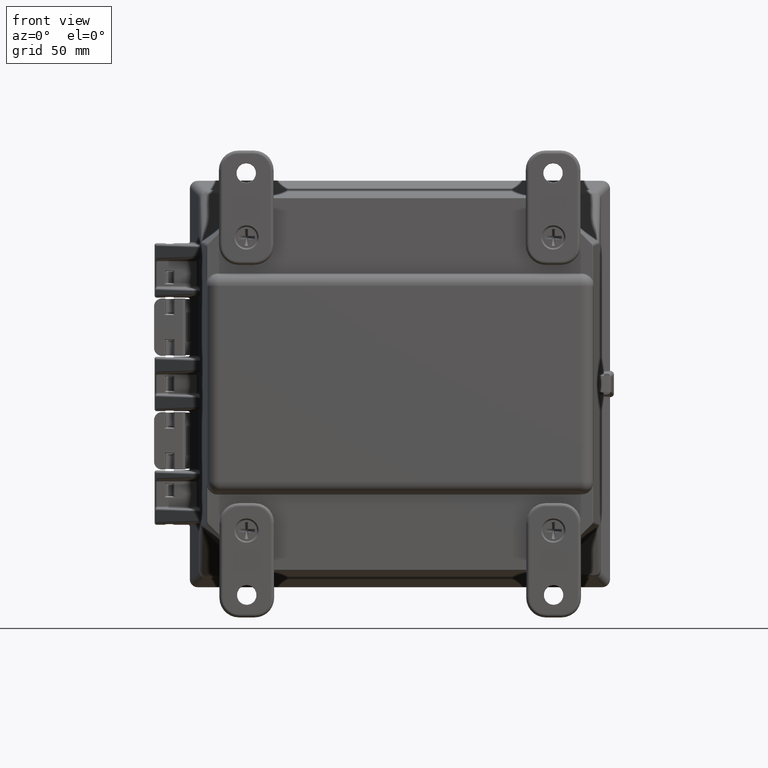
[diagram: clean part render]
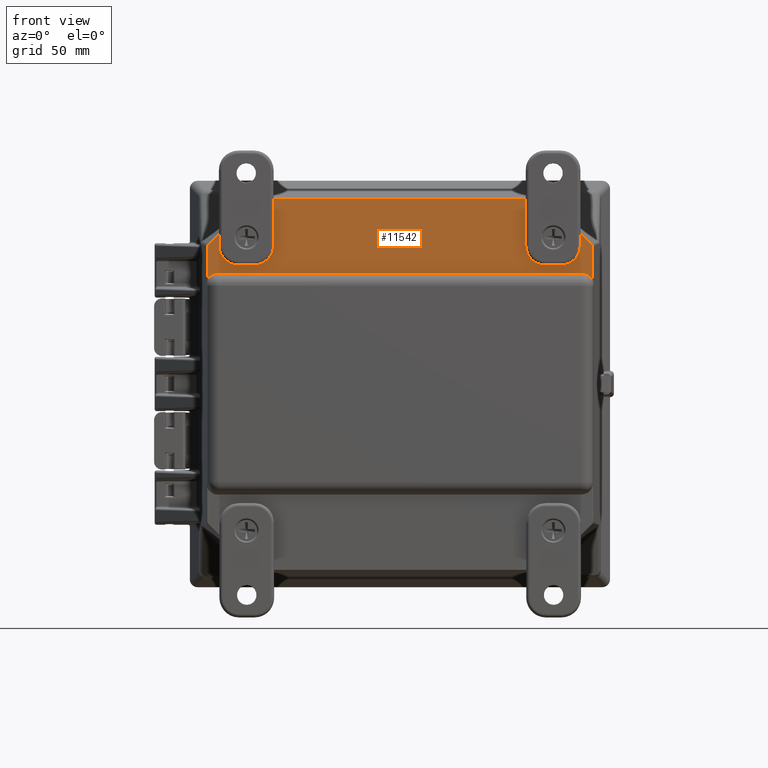
[diagram: same view with one face highlighted and labeled with its STEP entity id]
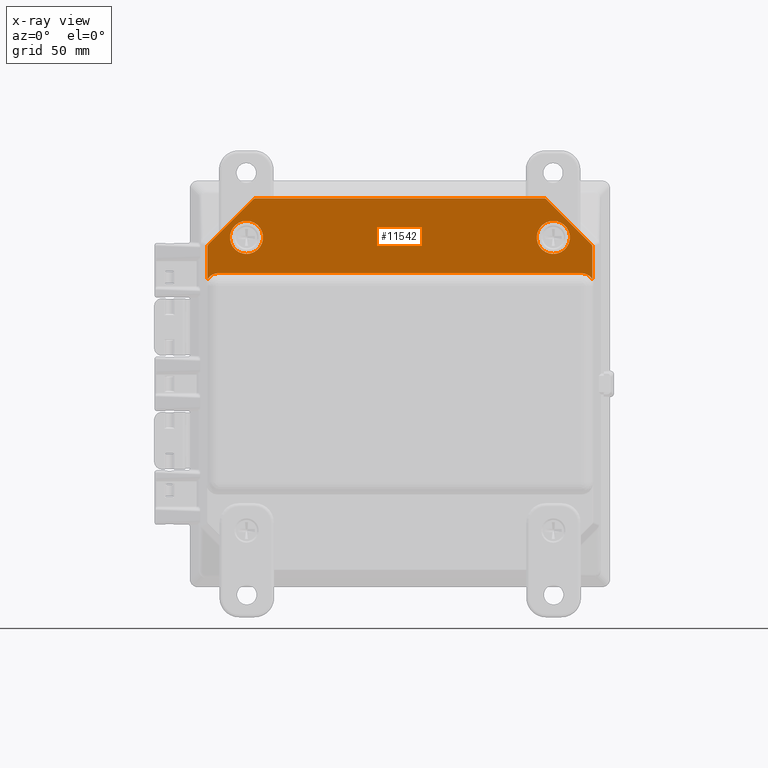
[diagram: x-ray of the same camera — body ghosted, the highlighted face saturated]
A machine part, front view. The second image highlights one B-rep face of the part: STEP entity #11542.
The next image is the same camera in x-ray: the body ghosted, the highlighted face saturated — about 0% of this face is hidden behind the body in this view.
In plain terms, the highlighted planar face has unit normal (0, 1, 0).
Its self-contained STEP definition (entity closure, byte-faithful):
#10 = DIRECTION ( 'NONE',  ( 0.0000000000000000000, 0.0000000000000000000, 1.000000000000000000 ) ) ;
#39 = CARTESIAN_POINT ( 'NONE',  ( -2.328379045665071700, -3.937000000000000300, 2.963895361888384100 ) ) ;
#520 = ORIENTED_EDGE ( 'NONE', *, *, #17523, .T. ) ;
#877 = EDGE_LOOP ( 'NONE', ( #6075, #109459 ) ) ;
#2278 = CARTESIAN_POINT ( 'NONE',  ( 2.453749999999998100, -3.937000000000000300, 2.608235331622105400 ) ) ;
#2630 = CARTESIAN_POINT ( 'NONE',  ( 3.077470665060967600, -3.937000000000000300, 4.958444029463636000 ) ) ;
#2968 = CARTESIAN_POINT ( 'NONE',  ( -2.453749999999998100, -3.937000000000000300, 2.343749999999999100 ) ) ;
#3241 = CARTESIAN_POINT ( 'NONE',  ( 3.063713069640588300, -3.937000000000000300, 2.233617580149132000 ) ) ;
#3453 = DIRECTION ( 'NONE',  ( 0.0000000000000000000, 1.000000000000000000, 0.0000000000000000000 ) ) ;
#3502 = CARTESIAN_POINT ( 'NONE',  ( -2.453749999999998100, -3.937000000000000300, 2.608235331622105400 ) ) ;
#4178 = VERTEX_POINT ( 'NONE', #92781 ) ;
#5704 = LINE ( 'NONE', #46005, #72383 ) ;
#6075 = ORIENTED_EDGE ( 'NONE', *, *, #65509, .T. ) ;
#7279 = FACE_OUTER_BOUND ( 'NONE', #41606, .T. ) ;
#8532 = EDGE_CURVE ( 'NONE', #104042, #82240, #25511, .T. ) ;
#9538 = VERTEX_POINT ( 'NONE', #89839 ) ;
#9996 = FACE_BOUND ( 'NONE', #73287, .T. ) ;
#10054 = VERTEX_POINT ( 'NONE', #23545 ) ;
#10289 = DIRECTION ( 'NONE',  ( 0.0000000000000000000, 0.0000000000000000000, 1.000000000000000000 ) ) ;
#11542 = ADVANCED_FACE ( 'NONE', ( #30405, #9996, #7279 ), #14478, .F. ) ;
#11764 = DIRECTION ( 'NONE',  ( 0.0000000000000000000, 0.0000000000000000000, 1.000000000000000000 ) ) ;
#12063 = DIRECTION ( 'NONE',  ( -0.7071067811865474600, -0.0000000000000000000, 0.7071067811865474600 ) ) ;
#12401 = ORIENTED_EDGE ( 'NONE', *, *, #112854, .T. ) ;
#13871 = ORIENTED_EDGE ( 'NONE', *, *, #40517, .T. ) ;
#14478 = PLANE ( 'NONE',  #59205 ) ;
#17523 = EDGE_CURVE ( 'NONE', #48837, #49108, #42013, .T. ) ;
#19009 = VECTOR ( 'NONE', #60152, 39.37007874015748100 ) ;
#19573 =( BOUNDED_CURVE ( )  B_SPLINE_CURVE ( 3, ( #43465, #95546, #52206, #39 ),
 .UNSPECIFIED., .F., .F. ) 
 B_SPLINE_CURVE_WITH_KNOTS ( ( 4, 4 ),
 ( 5.890738540009103000, 6.283185307179589800 ),
 .UNSPECIFIED. ) 
 CURVE ( )  GEOMETRIC_REPRESENTATION_ITEM ( )  RATIONAL_B_SPLINE_CURVE ( ( 1.000000000000000000, 0.9872065897730176700, 0.9872065897730176700, 1.000000000000000000 ) ) 
 REPRESENTATION_ITEM ( '' )  );
#20265 = EDGE_CURVE ( 'NONE', #94948, #61346, #54582, .T. ) ;
#22217 = ORIENTED_EDGE ( 'NONE', *, *, #20265, .T. ) ;
#22554 = AXIS2_PLACEMENT_3D ( 'NONE', #90373, #38315, #99158 ) ;
#23451 = ORIENTED_EDGE ( 'NONE', *, *, #107617, .T. ) ;
#23545 = CARTESIAN_POINT ( 'NONE',  ( -2.343617580149129700, -3.937000000000000300, 2.953713069640588000 ) ) ;
#23725 = VECTOR ( 'NONE', #12063, 39.37007874015748900 ) ;
#24300 = LINE ( 'NONE', #2630, #47446 ) ;
#24927 = CARTESIAN_POINT ( 'NONE',  ( -2.453749999999998100, -3.937000000000000300, 2.079264668377892800 ) ) ;
#24934 = EDGE_CURVE ( 'NONE', #48469, #4178, #19573, .T. ) ;
#25156 = CARTESIAN_POINT ( 'NONE',  ( -3.077470665060965300, -3.937000000000000300, 4.958444029463636000 ) ) ;
#25434 =( BOUNDED_CURVE ( )  B_SPLINE_CURVE ( 3, ( #83377, #83013, #40082, #100931 ),
 .UNSPECIFIED., .F., .F. ) 
 B_SPLINE_CURVE_WITH_KNOTS ( ( 4, 4 ),
 ( 5.890738540009103000, 6.283185307179589800 ),
 .UNSPECIFIED. ) 
 CURVE ( )  GEOMETRIC_REPRESENTATION_ITEM ( )  RATIONAL_B_SPLINE_CURVE ( ( 1.000000000000000000, 0.9872065897730176700, 0.9872065897730176700, 1.000000000000000000 ) ) 
 REPRESENTATION_ITEM ( '' )  );
#25511 = CIRCLE ( 'NONE', #22554, 0.2015142674849600700 ) ;
#26102 = LINE ( 'NONE', #39416, #69634 ) ;
#28457 = CARTESIAN_POINT ( 'NONE',  ( -2.339241461202370900, -3.936999999999999400, 2.958089188587347300 ) ) ;
#28739 = EDGE_CURVE ( 'NONE', #9538, #87882, #36960, .T. ) ;
#29129 = CARTESIAN_POINT ( 'NONE',  ( 3.073895361888384000, -3.936999999999999400, 2.218379045665074900 ) ) ;
#29548 = CARTESIAN_POINT ( 'NONE',  ( 2.343617580149132400, -3.937000000000000300, 2.953713069640588000 ) ) ;
#30276 = VERTEX_POINT ( 'NONE', #84087 ) ;
#30405 = FACE_BOUND ( 'NONE', #877, .T. ) ;
#31949 = DIRECTION ( 'NONE',  ( 0.0000000000000000000, 1.000000000000000000, 0.0000000000000000000 ) ) ;
#32029 = ORIENTED_EDGE ( 'NONE', *, *, #28739, .T. ) ;
#32302 = LINE ( 'NONE', #53493, #88052 ) ;
#36196 = CARTESIAN_POINT ( 'NONE',  ( 2.453749999999998100, -3.937000000000000300, 2.343749999999999100 ) ) ;
#36403 = CARTESIAN_POINT ( 'NONE',  ( -3.077470665060965300, -3.937000000000000300, 2.200403806699611200 ) ) ;
#36926 = AXIS2_PLACEMENT_3D ( 'NONE', #55629, #3453, #64355 ) ;
#36960 =( BOUNDED_CURVE ( )  B_SPLINE_CURVE ( 3, ( #29129, #81214, #55422, #3241 ),
 .UNSPECIFIED., .F., .F. ) 
 B_SPLINE_CURVE_WITH_KNOTS ( ( 4, 4 ),
 ( 3.360318343270543600E-015, 0.3924467671704872100 ),
 .UNSPECIFIED. ) 
 CURVE ( )  GEOMETRIC_REPRESENTATION_ITEM ( )  RATIONAL_B_SPLINE_CURVE ( ( 1.000000000000000000, 0.9872065897730177800, 0.9872065897730177800, 1.000000000000000000 ) ) 
 REPRESENTATION_ITEM ( '' )  );
#38315 = DIRECTION ( 'NONE',  ( 0.0000000000000000000, 1.000000000000000000, 0.0000000000000000000 ) ) ;
#38333 = CARTESIAN_POINT ( 'NONE',  ( 2.323028346690768900, -3.937000000000000300, 2.967470665060967200 ) ) ;
#39416 = CARTESIAN_POINT ( 'NONE',  ( -3.063565003102291900, -3.937000000000000300, 2.233765646687424500 ) ) ;
#40082 = CARTESIAN_POINT ( 'NONE',  ( 3.076263452977356000, -3.936999999999999400, 2.212661968041143900 ) ) ;
#40517 = EDGE_CURVE ( 'NONE', #49108, #104042, #88361, .T. ) ;
#41606 = EDGE_LOOP ( 'NONE', ( #520, #13871, #94229, #12401, #92765, #43449, #59855, #32029, #76763, #87526, #23451, #61437, #44736, #106584 ) ) ;
#42013 =( BOUNDED_CURVE ( )  B_SPLINE_CURVE ( 3, ( #88472, #69876, #70979, #36403 ),
 .UNSPECIFIED., .F., .F. ) 
 B_SPLINE_CURVE_WITH_KNOTS ( ( 4, 4 ),
 ( 2.749145886419305900, 3.534039420760276300 ),
 .UNSPECIFIED. ) 
 CURVE ( )  GEOMETRIC_REPRESENTATION_ITEM ( )  RATIONAL_B_SPLINE_CURVE ( ( 1.000000000000000000, 0.9493173731277787500, 0.9493173731277787500, 1.000000000000000000 ) ) 
 REPRESENTATION_ITEM ( '' )  );
#42436 = CARTESIAN_POINT ( 'NONE',  ( -2.904807091129700100, -3.937000000000000300, 1.770930466596036800 ) ) ;
#42721 = CARTESIAN_POINT ( 'NONE',  ( 2.310403806699613300, -3.937000000000000300, 2.967470665060966800 ) ) ;
#43449 = ORIENTED_EDGE ( 'NONE', *, *, #78201, .T. ) ;
#43465 = CARTESIAN_POINT ( 'NONE',  ( -2.310403806699610200, -3.937000000000000300, 2.967470665060966800 ) ) ;
#44656 = CARTESIAN_POINT ( 'NONE',  ( -2.310403806699610200, -3.937000000000000300, 2.967470665060966800 ) ) ;
#44736 = ORIENTED_EDGE ( 'NONE', *, *, #54884, .T. ) ;
#44961 = DIRECTION ( 'NONE',  ( 0.0000000000000000000, 0.0000000000000000000, 1.000000000000000000 ) ) ;
#45672 = LINE ( 'NONE', #64167, #23725 ) ;
#46005 = CARTESIAN_POINT ( 'NONE',  ( -4.715929038281982100, -3.937000000000000300, 1.770930466596036800 ) ) ;
#47446 = VECTOR ( 'NONE', #10289, 39.37007874015748100 ) ;
#48469 = VERTEX_POINT ( 'NONE', #44656 ) ;
#48837 = VERTEX_POINT ( 'NONE', #96994 ) ;
#48877 = VERTEX_POINT ( 'NONE', #105808 ) ;
#49108 = VERTEX_POINT ( 'NONE', #85859 ) ;
#49386 = CARTESIAN_POINT ( 'NONE',  ( -3.077470665060965300, -3.937000000000000300, 1.673316585237801400 ) ) ;
#49468 = EDGE_CURVE ( 'NONE', #10054, #48837, #26102, .T. ) ;
#50465 = CARTESIAN_POINT ( 'NONE',  ( 2.453749999999998100, -3.937000000000000300, 2.343749999999999100 ) ) ;
#52180 = DIRECTION ( 'NONE',  ( 0.0000000000000000000, 1.000000000000000000, 0.0000000000000000000 ) ) ;
#52206 = CARTESIAN_POINT ( 'NONE',  ( -2.322661968041140700, -3.937000000000000300, 2.966263452977355700 ) ) ;
#53493 = CARTESIAN_POINT ( 'NONE',  ( -4.715929038281982100, -3.937000000000000300, 2.967470665060966800 ) ) ;
#54350 = CARTESIAN_POINT ( 'NONE',  ( -2.334096123289002700, -3.936999999999999400, 2.961527270799412000 ) ) ;
#54582 = CIRCLE ( 'NONE', #78009, 0.2644853316221063000 ) ;
#54884 = EDGE_CURVE ( 'NONE', #4178, #10054, #74294, .T. ) ;
#55078 = CARTESIAN_POINT ( 'NONE',  ( 2.453749999999998100, -3.937000000000000300, 2.079264668377892800 ) ) ;
#55422 = CARTESIAN_POINT ( 'NONE',  ( 3.068089188587346700, -3.936999999999999400, 2.229241461202374100 ) ) ;
#55508 = VERTEX_POINT ( 'NONE', #42721 ) ;
#55629 = CARTESIAN_POINT ( 'NONE',  ( 2.904807091129701900, -3.937000000000000300, 1.569416199111076900 ) ) ;
#57065 = AXIS2_PLACEMENT_3D ( 'NONE', #104325, #52180, #10 ) ;
#58446 = AXIS2_PLACEMENT_3D ( 'NONE', #50465, #111369, #59211 ) ;
#58669 =( BOUNDED_CURVE ( )  B_SPLINE_CURVE ( 3, ( #29548, #90396, #38333, #99178 ),
 .UNSPECIFIED., .F., .F. ) 
 B_SPLINE_CURVE_WITH_KNOTS ( ( 4, 4 ),
 ( 2.749145886419309900, 3.534039420760275900 ),
 .UNSPECIFIED. ) 
 CURVE ( )  GEOMETRIC_REPRESENTATION_ITEM ( )  RATIONAL_B_SPLINE_CURVE ( ( 1.000000000000000000, 0.9493173731277793100, 0.9493173731277793100, 1.000000000000000000 ) ) 
 REPRESENTATION_ITEM ( '' )  );
#59205 = AXIS2_PLACEMENT_3D ( 'NONE', #75329, #31949, #92817 ) ;
#59211 = DIRECTION ( 'NONE',  ( 0.0000000000000000000, 0.0000000000000000000, 1.000000000000000000 ) ) ;
#59855 = ORIENTED_EDGE ( 'NONE', *, *, #77866, .T. ) ;
#60152 = DIRECTION ( 'NONE',  ( 0.0000000000000000000, 0.0000000000000000000, -1.000000000000000000 ) ) ;
#61346 = VERTEX_POINT ( 'NONE', #3502 ) ;
#61359 = CARTESIAN_POINT ( 'NONE',  ( 3.077470665060967600, -3.937000000000000300, 1.673316585237801100 ) ) ;
#61437 = ORIENTED_EDGE ( 'NONE', *, *, #24934, .T. ) ;
#62754 = EDGE_CURVE ( 'NONE', #93430, #62840, #69646, .T. ) ;
#62840 = VERTEX_POINT ( 'NONE', #2278 ) ;
#63083 = CARTESIAN_POINT ( 'NONE',  ( -2.328379045665071700, -3.937000000000000300, 2.963895361888384100 ) ) ;
#63867 = DIRECTION ( 'NONE',  ( 0.0000000000000000000, 1.000000000000000000, 0.0000000000000000000 ) ) ;
#64167 = CARTESIAN_POINT ( 'NONE',  ( 2.343765646687426200, -3.937000000000000300, 2.953565003102294600 ) ) ;
#64355 = DIRECTION ( 'NONE',  ( 0.0000000000000000000, 0.0000000000000000000, 1.000000000000000000 ) ) ;
#65509 = EDGE_CURVE ( 'NONE', #62840, #93430, #78699, .T. ) ;
#69634 = VECTOR ( 'NONE', #91465, 39.37007874015748900 ) ;
#69646 = CIRCLE ( 'NONE', #107154, 0.2644853316221063000 ) ;
#69876 = CARTESIAN_POINT ( 'NONE',  ( -3.072639967477693600, -3.936999999999999400, 2.224690682312023200 ) ) ;
#70824 = CIRCLE ( 'NONE', #57065, 0.2644853316221063000 ) ;
#70979 = CARTESIAN_POINT ( 'NONE',  ( -3.077470665060964400, -3.936999999999999400, 2.213028346690765900 ) ) ;
#71179 = EDGE_CURVE ( 'NONE', #84027, #87411, #96049, .T. ) ;
#72383 = VECTOR ( 'NONE', #98084, 39.37007874015748100 ) ;
#73287 = EDGE_LOOP ( 'NONE', ( #87668, #22217 ) ) ;
#74294 =( BOUNDED_CURVE ( )  B_SPLINE_CURVE ( 3, ( #63083, #54350, #28457, #89296 ),
 .UNSPECIFIED., .F., .F. ) 
 B_SPLINE_CURVE_WITH_KNOTS ( ( 4, 4 ),
 ( 3.632776587319505500E-015, 0.3924467671704997600 ),
 .UNSPECIFIED. ) 
 CURVE ( )  GEOMETRIC_REPRESENTATION_ITEM ( )  RATIONAL_B_SPLINE_CURVE ( ( 1.000000000000000000, 0.9872065897730171200, 0.9872065897730171200, 1.000000000000000000 ) ) 
 REPRESENTATION_ITEM ( '' )  );
#75329 = CARTESIAN_POINT ( 'NONE',  ( -4.715929038281982100, -3.937000000000000300, 4.958444029463636000 ) ) ;
#76763 = ORIENTED_EDGE ( 'NONE', *, *, #89178, .T. ) ;
#77866 = EDGE_CURVE ( 'NONE', #48877, #9538, #25434, .T. ) ;
#78009 = AXIS2_PLACEMENT_3D ( 'NONE', #2968, #63867, #11764 ) ;
#78201 = EDGE_CURVE ( 'NONE', #87411, #48877, #24300, .T. ) ;
#78699 = CIRCLE ( 'NONE', #58446, 0.2644853316221063000 ) ;
#81214 = CARTESIAN_POINT ( 'NONE',  ( 3.071527270799412300, -3.936999999999999400, 2.224096123289005500 ) ) ;
#82240 = VERTEX_POINT ( 'NONE', #42436 ) ;
#83013 = CARTESIAN_POINT ( 'NONE',  ( 3.077470665060967600, -3.936999999999999400, 2.206592573464677200 ) ) ;
#83377 = CARTESIAN_POINT ( 'NONE',  ( 3.077470665060967600, -3.937000000000000300, 2.200403806699613400 ) ) ;
#84027 = VERTEX_POINT ( 'NONE', #84632 ) ;
#84087 = CARTESIAN_POINT ( 'NONE',  ( 2.343617580149132400, -3.937000000000000300, 2.953713069640588000 ) ) ;
#84632 = CARTESIAN_POINT ( 'NONE',  ( 2.904807091129701900, -3.937000000000000300, 1.770930466596036800 ) ) ;
#85859 = CARTESIAN_POINT ( 'NONE',  ( -3.077470665060965300, -3.937000000000000300, 2.200403806699611200 ) ) ;
#87411 = VERTEX_POINT ( 'NONE', #61359 ) ;
#87526 = ORIENTED_EDGE ( 'NONE', *, *, #96220, .T. ) ;
#87668 = ORIENTED_EDGE ( 'NONE', *, *, #100143, .T. ) ;
#87882 = VERTEX_POINT ( 'NONE', #103531 ) ;
#88052 = VECTOR ( 'NONE', #96081, 39.37007874015748100 ) ;
#88361 = LINE ( 'NONE', #25156, #19009 ) ;
#88472 = CARTESIAN_POINT ( 'NONE',  ( -3.063713069640586100, -3.937000000000000300, 2.233617580149130300 ) ) ;
#89178 = EDGE_CURVE ( 'NONE', #87882, #30276, #45672, .T. ) ;
#89296 = CARTESIAN_POINT ( 'NONE',  ( -2.343617580149129700, -3.937000000000000300, 2.953713069640588000 ) ) ;
#89839 = CARTESIAN_POINT ( 'NONE',  ( 3.073895361888384000, -3.936999999999999400, 2.218379045665074900 ) ) ;
#90373 = CARTESIAN_POINT ( 'NONE',  ( -2.904807091129699700, -3.937000000000000300, 1.569416199111076900 ) ) ;
#90396 = CARTESIAN_POINT ( 'NONE',  ( 2.334690682312025700, -3.937000000000000300, 2.962639967477695100 ) ) ;
#91465 = DIRECTION ( 'NONE',  ( -0.7071067811865474600, 0.0000000000000000000, -0.7071067811865474600 ) ) ;
#92765 = ORIENTED_EDGE ( 'NONE', *, *, #71179, .T. ) ;
#92781 = CARTESIAN_POINT ( 'NONE',  ( -2.328379045665071700, -3.937000000000000300, 2.963895361888384100 ) ) ;
#92817 = DIRECTION ( 'NONE',  ( 0.0000000000000000000, -0.0000000000000000000, 1.000000000000000000 ) ) ;
#93430 = VERTEX_POINT ( 'NONE', #55078 ) ;
#94229 = ORIENTED_EDGE ( 'NONE', *, *, #8532, .T. ) ;
#94948 = VERTEX_POINT ( 'NONE', #24927 ) ;
#95546 = CARTESIAN_POINT ( 'NONE',  ( -2.316592573464674400, -3.937000000000000300, 2.967470665060967200 ) ) ;
#96049 = CIRCLE ( 'NONE', #36926, 0.2015142674849600700 ) ;
#96081 = DIRECTION ( 'NONE',  ( -1.000000000000000000, 0.0000000000000000000, 0.0000000000000000000 ) ) ;
#96220 = EDGE_CURVE ( 'NONE', #30276, #55508, #58669, .T. ) ;
#96994 = CARTESIAN_POINT ( 'NONE',  ( -3.063713069640586100, -3.937000000000000300, 2.233617580149130300 ) ) ;
#97045 = DIRECTION ( 'NONE',  ( 0.0000000000000000000, 1.000000000000000000, 0.0000000000000000000 ) ) ;
#98084 = DIRECTION ( 'NONE',  ( 1.000000000000000000, -0.0000000000000000000, -0.0000000000000000000 ) ) ;
#99158 = DIRECTION ( 'NONE',  ( 0.0000000000000000000, 0.0000000000000000000, 1.000000000000000000 ) ) ;
#99178 = CARTESIAN_POINT ( 'NONE',  ( 2.310403806699613300, -3.937000000000000300, 2.967470665060966800 ) ) ;
#100143 = EDGE_CURVE ( 'NONE', #61346, #94948, #70824, .T. ) ;
#100931 = CARTESIAN_POINT ( 'NONE',  ( 3.073895361888384000, -3.936999999999999400, 2.218379045665074900 ) ) ;
#103531 = CARTESIAN_POINT ( 'NONE',  ( 3.063713069640588300, -3.937000000000000300, 2.233617580149132000 ) ) ;
#104042 = VERTEX_POINT ( 'NONE', #49386 ) ;
#104325 = CARTESIAN_POINT ( 'NONE',  ( -2.453749999999998100, -3.937000000000000300, 2.343749999999999100 ) ) ;
#105808 = CARTESIAN_POINT ( 'NONE',  ( 3.077470665060967600, -3.937000000000000300, 2.200403806699613400 ) ) ;
#106584 = ORIENTED_EDGE ( 'NONE', *, *, #49468, .T. ) ;
#107154 = AXIS2_PLACEMENT_3D ( 'NONE', #36196, #97045, #44961 ) ;
#107617 = EDGE_CURVE ( 'NONE', #55508, #48469, #32302, .T. ) ;
#109459 = ORIENTED_EDGE ( 'NONE', *, *, #62754, .T. ) ;
#111369 = DIRECTION ( 'NONE',  ( 0.0000000000000000000, 1.000000000000000000, 0.0000000000000000000 ) ) ;
#112854 = EDGE_CURVE ( 'NONE', #82240, #84027, #5704, .T. ) ;